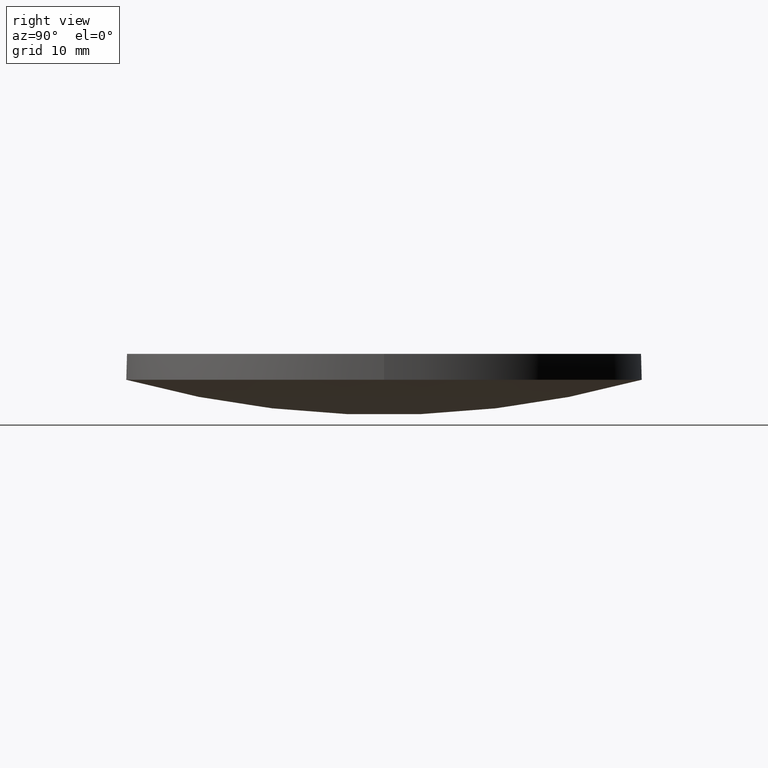
[diagram: clean part render]
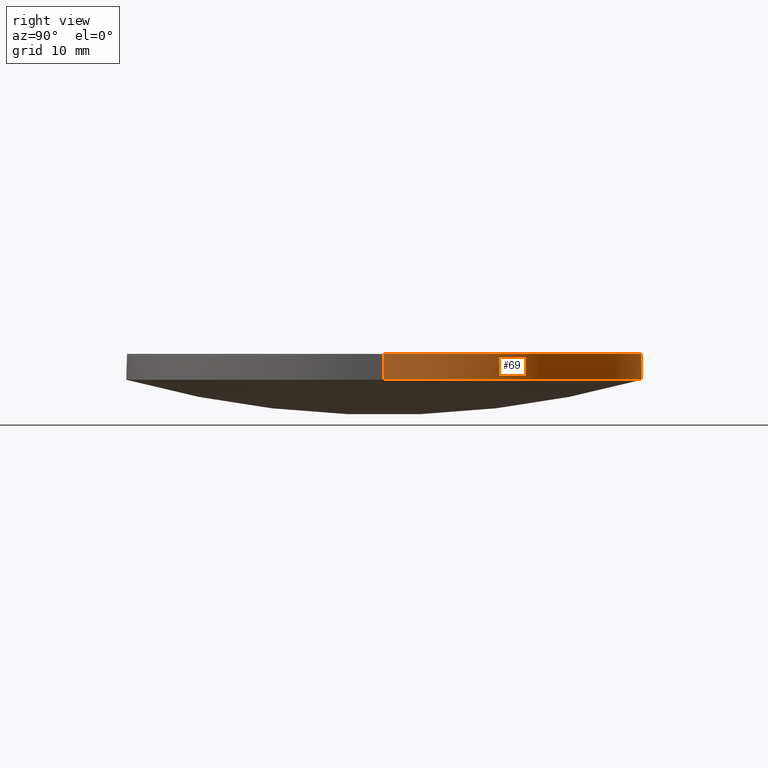
[diagram: same view with one face highlighted and labeled with its STEP entity id]
A machine part, right view. The second image highlights one B-rep face of the part: STEP entity #69.
In plain terms, the highlighted cylindrical surface (partial cylindrical patch) has radius 25.4 mm, axis along (0, 0, 1).
Its self-contained STEP definition (entity closure, byte-faithful):
#7 = CIRCLE ( 'NONE', #9, 25.39999999999999900 ) ;
#9 = AXIS2_PLACEMENT_3D ( 'NONE', #195, #77, #61 ) ;
#10 = CARTESIAN_POINT ( 'NONE',  ( -25.39999999999999900, 7.995584178184967200E-015, 6.000000000000000000 ) ) ;
#17 = VERTEX_POINT ( 'NONE', #144 ) ;
#29 = CYLINDRICAL_SURFACE ( 'NONE', #178, 25.39999999999999900 ) ;
#32 = CARTESIAN_POINT ( 'NONE',  ( -25.39999999999999900, 7.995584178184967200E-015, 3.450618463287360000 ) ) ;
#33 = DIRECTION ( 'NONE',  ( 0.0000000000000000000, 0.0000000000000000000, 1.000000000000000000 ) ) ;
#36 = DIRECTION ( 'NONE',  ( 1.000000000000000000, 1.776356839400250500E-015, 0.0000000000000000000 ) ) ;
#38 = VECTOR ( 'NONE', #203, 1000.000000000000000 ) ;
#51 = VERTEX_POINT ( 'NONE', #200 ) ;
#52 = CARTESIAN_POINT ( 'NONE',  ( 9.992007221626412800E-016, 4.884981308350691100E-015, 3.450618463287360000 ) ) ;
#55 = ORIENTED_EDGE ( 'NONE', *, *, #66, .F. ) ;
#59 = DIRECTION ( 'NONE',  ( 1.000000000000000000, 0.0000000000000000000, 0.0000000000000000000 ) ) ;
#61 = DIRECTION ( 'NONE',  ( 1.000000000000000000, -8.881784197001252300E-016, 0.0000000000000000000 ) ) ;
#64 = CIRCLE ( 'NONE', #197, 25.39999999999999900 ) ;
#66 = EDGE_CURVE ( 'NONE', #132, #199, #175, .T. ) ;
#69 = ADVANCED_FACE ( 'NONE', ( #221 ), #29, .T. ) ;
#72 = ORIENTED_EDGE ( 'NONE', *, *, #87, .T. ) ;
#77 = DIRECTION ( 'NONE',  ( -0.0000000000000000000, -0.0000000000000000000, -1.000000000000000000 ) ) ;
#86 = EDGE_LOOP ( 'NONE', ( #167, #72, #173, #55, #143 ) ) ;
#87 = EDGE_CURVE ( 'NONE', #51, #109, #218, .T. ) ;
#96 = DIRECTION ( 'NONE',  ( 0.0000000000000000000, 0.0000000000000000000, 1.000000000000000000 ) ) ;
#100 = CARTESIAN_POINT ( 'NONE',  ( 9.992007221626412800E-016, 4.884981308350691100E-015, 6.000000000000000000 ) ) ;
#109 = VERTEX_POINT ( 'NONE', #10 ) ;
#112 = CIRCLE ( 'NONE', #126, 25.39999999999999900 ) ;
#115 = CARTESIAN_POINT ( 'NONE',  ( 9.992007221626412800E-016, 4.884981308350691100E-015, 3.450618463287360000 ) ) ;
#118 = VECTOR ( 'NONE', #96, 1000.000000000000000 ) ;
#123 = EDGE_CURVE ( 'NONE', #109, #199, #64, .T. ) ;
#126 = AXIS2_PLACEMENT_3D ( 'NONE', #115, #168, #36 ) ;
#132 = VERTEX_POINT ( 'NONE', #134 ) ;
#134 = CARTESIAN_POINT ( 'NONE',  ( 25.39999999999999900, 4.884981308350691100E-015, 3.450618463287360000 ) ) ;
#143 = ORIENTED_EDGE ( 'NONE', *, *, #189, .F. ) ;
#144 = CARTESIAN_POINT ( 'NONE',  ( 3.540965199865962800E-014, 25.39999999999999100, 3.450618463287351100 ) ) ;
#164 = DIRECTION ( 'NONE',  ( -0.0000000000000000000, -0.0000000000000000000, -1.000000000000000000 ) ) ;
#167 = ORIENTED_EDGE ( 'NONE', *, *, #216, .F. ) ;
#168 = DIRECTION ( 'NONE',  ( -0.0000000000000000000, -0.0000000000000000000, -1.000000000000000000 ) ) ;
#173 = ORIENTED_EDGE ( 'NONE', *, *, #123, .T. ) ;
#175 = LINE ( 'NONE', #180, #38 ) ;
#178 = AXIS2_PLACEMENT_3D ( 'NONE', #52, #33, #182 ) ;
#180 = CARTESIAN_POINT ( 'NONE',  ( 25.39999999999999900, 4.884981308350691100E-015, 3.450618463287360000 ) ) ;
#182 = DIRECTION ( 'NONE',  ( 1.000000000000000000, 0.0000000000000000000, 0.0000000000000000000 ) ) ;
#188 = CARTESIAN_POINT ( 'NONE',  ( 25.39999999999999900, 4.884981308350691100E-015, 6.000000000000000000 ) ) ;
#189 = EDGE_CURVE ( 'NONE', #17, #132, #112, .T. ) ;
#195 = CARTESIAN_POINT ( 'NONE',  ( 9.992007221626412800E-016, 4.884981308350691100E-015, 3.450618463287360000 ) ) ;
#197 = AXIS2_PLACEMENT_3D ( 'NONE', #100, #164, #59 ) ;
#199 = VERTEX_POINT ( 'NONE', #188 ) ;
#200 = CARTESIAN_POINT ( 'NONE',  ( -25.39999999999999900, 7.995584178184967200E-015, 3.450618463287360000 ) ) ;
#203 = DIRECTION ( 'NONE',  ( 0.0000000000000000000, 0.0000000000000000000, 1.000000000000000000 ) ) ;
#216 = EDGE_CURVE ( 'NONE', #51, #17, #7, .T. ) ;
#218 = LINE ( 'NONE', #32, #118 ) ;
#221 = FACE_OUTER_BOUND ( 'NONE', #86, .T. ) ;